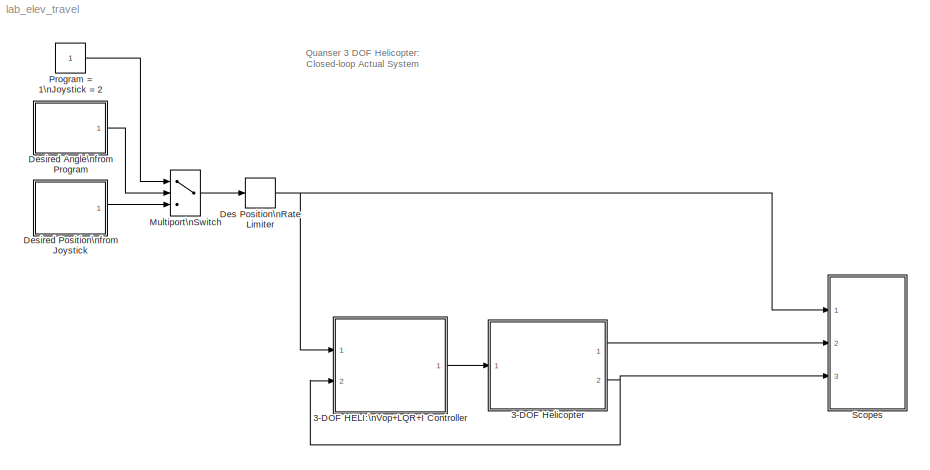
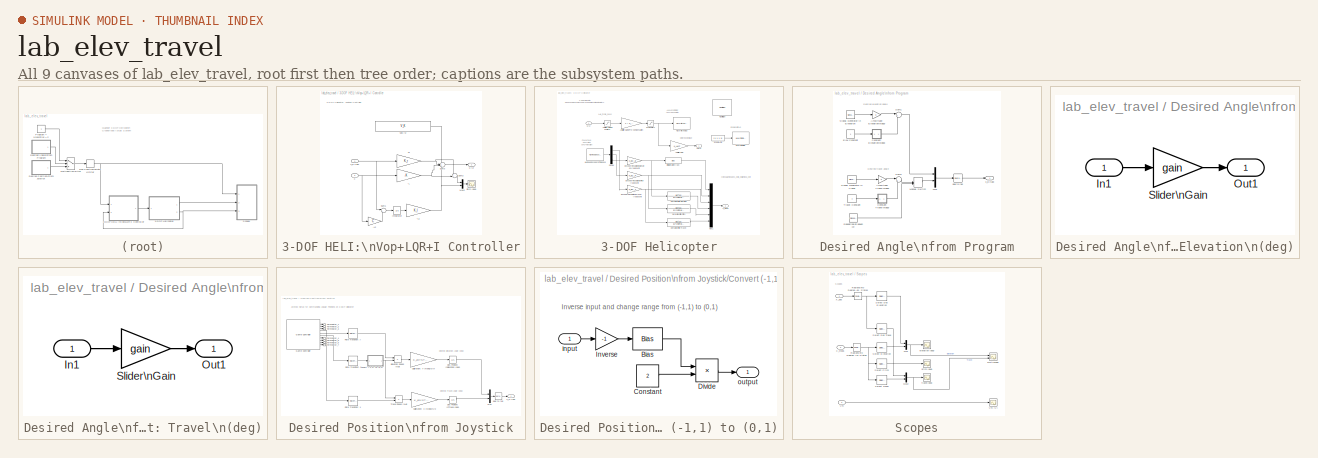
[diagram: thumbnail index - all 9 canvases of the model, root first then tree order]
MODEL lab_elev_travel
KIND model
BLOCK [SubSystem] 3-DOF HELI:\nVop+LQR+I Controller
  Ports = [2, 1]
  RequestExecContextInheritance = off
  SID = 400
  Variant = off
BLOCK [Gain] 3-DOF HELI:\nVop+LQR+I Controller/-L
  Gain = -K
  Multiplication = Matrix(K*u)
  OutDataTypeStr = Inherit: Inherit via internal rule
  ParamDataTypeStr = Inherit: Inherit via internal rule
  SID = 403
  SaturateOnIntegerOverflow = off
BLOCK [Gain] 3-DOF HELI:\nVop+LQR+I Controller/-L1
  Gain = K_I
  Multiplication = Matrix(K*u)
  OutDataTypeStr = Inherit: Inherit via internal rule
  ParamDataTypeStr = Inherit: Inherit via internal rule
  SID = 513
  SaturateOnIntegerOverflow = off
BLOCK [Gain] 3-DOF HELI:\nVop+LQR+I Controller/-L2
  Gain = C
  Multiplication = Matrix(K*u)
  OutDataTypeStr = Inherit: Inherit via internal rule
  ParamDataTypeStr = Inherit: Inherit via internal rule
  SID = 515
  SaturateOnIntegerOverflow = off
BLOCK [Integrator] 3-DOF HELI:\nVop+LQR+I Controller/Integrator
  LimitOutput = on
  LowerSaturationLimit = -SAT_INT_ERR_TRAVEL
  Ports = [1, 1]
  SID = 516
  UpperSaturationLimit = SAT_INT_ERR_TRAVEL
BLOCK [Gain] 3-DOF HELI:\nVop+LQR+I Controller/Kr
  Gain = K_r
  Multiplication = Matrix(K*u)
  OutDataTypeStr = Inherit: Inherit via internal rule
  ParamDataTypeStr = Inherit: Inherit via internal rule
  SID = 406
  SaturateOnIntegerOverflow = off
BLOCK [Mux] 3-DOF HELI:\nVop+LQR+I Controller/Mux2
  DisplayOption = bar
  Inputs = 2
  Ports = [2, 1]
  SID = 520
BLOCK [Sum] 3-DOF HELI:\nVop+LQR+I Controller/Sum1
  IconShape = round
  InputSameDT = off
  Inputs = |+-
  OutDataTypeStr = Inherit: Inherit via internal rule
  Ports = [2, 1]
  SID = 514
  SaturateOnIntegerOverflow = off
BLOCK [Sum] 3-DOF HELI:\nVop+LQR+I Controller/Sum2
  IconShape = round
  InputSameDT = off
  OutDataTypeStr = Inherit: Inherit via internal rule
  Ports = [2, 1]
  SID = 521
  SaturateOnIntegerOverflow = off
BLOCK [Sum] 3-DOF HELI:\nVop+LQR+I Controller/Sum3
  IconShape = round
  InputSameDT = off
  Inputs = ++++
  OutDataTypeStr = Inherit: Inherit via internal rule
  Ports = [4, 1]
  SID = 408
  SaturateOnIntegerOverflow = off
BLOCK [Constant] 3-DOF HELI:\nVop+LQR+I Controller/Vop (V)
  SID = 409
  Value = V_K
BLOCK [Inport] 3-DOF HELI:\nVop+LQR+I Controller/X
  IconDisplay = Port number
  Port = 2
  SID = 402
BLOCK [Inport] 3-DOF HELI:\nVop+LQR+I Controller/X_d (rad)
  IconDisplay = Port number
  SID = 401
BLOCK [Scope] 3-DOF HELI:\nVop+LQR+I Controller/pitch (deg)
  Ports = [1]
  SID = 522
  ScopeSpecificationString = C++SS(StrPVP('Location','[1381, 610, 1858, 1035]'),StrPVP('Open','off'),StrPVP('TickLabels','on'),StrPVP('ZoomMode','xonly'),MxPVP('AxesTitles',24,'struct(''axes1'',''%<SignalLabel>'')'),StrPVP('TimeRange','20'),StrPVP('YMin','-7'),StrPVP('YMax','14'),StrPVP('SaveName','ScopeData3'),StrPVP('DataFormat','Array'),StrPVP('LimitDataPoints','off'),StrPVP('BlockParamSampleTime','0'),StrPVP('Decimation',...<+43ch>
BLOCK [Outport] 3-DOF HELI:\nVop+LQR+I Controller/u (V)
  IconDisplay = Port number
  SID = 410
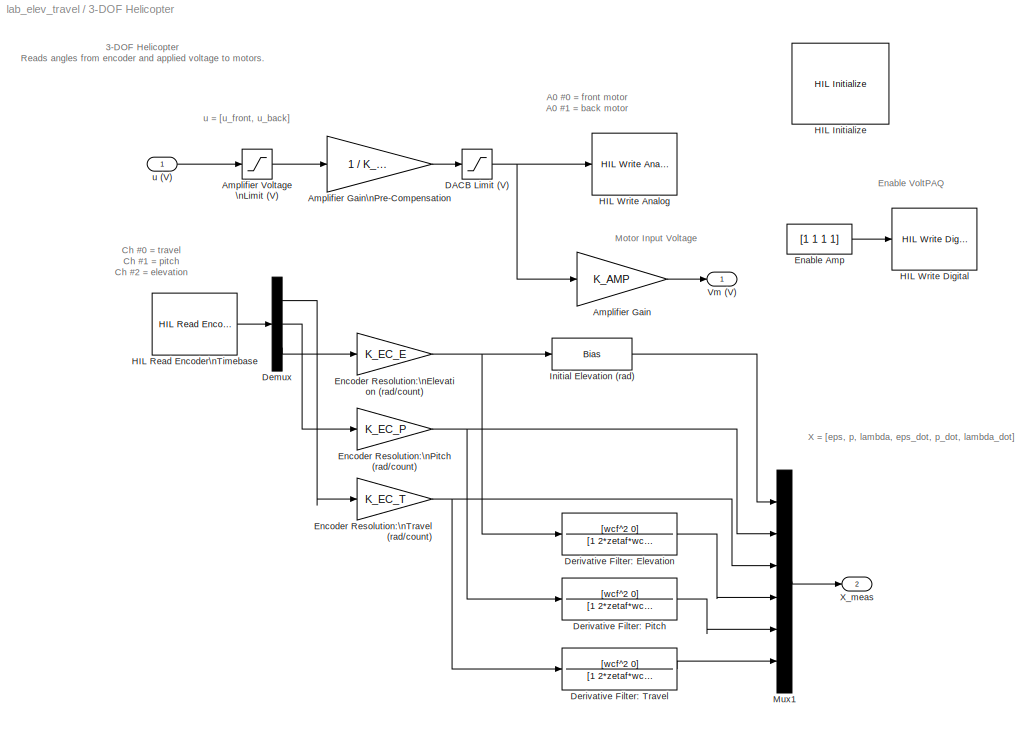
BLOCK [SubSystem] 3-DOF Helicopter
  Ports = [1, 2]
  RequestExecContextInheritance = off
  SID = 37
  Variant = off
BLOCK [Gain] 3-DOF Helicopter/Amplifier Gain
  Gain = K_AMP
  Multiplication = Matrix(K*u)
  SID = 39
BLOCK [Gain] 3-DOF Helicopter/Amplifier Gain\nPre-Compensation
  Gain = 1 / K_AMP
  Multiplication = Matrix(K*u)
  SID = 40
BLOCK [Saturate] 3-DOF Helicopter/Amplifier Voltage \nLimit (V)
  InputPortMap = u0
  LowerLimit = -VMAX_AMP
  Ports = [1, 1]
  SID = 41
  UpperLimit = VMAX_AMP
BLOCK [Saturate] 3-DOF Helicopter/DACB Limit (V)
  InputPortMap = u0
  LowerLimit = -VMAX_DAC
  Ports = [1, 1]
  SID = 42
  UpperLimit = VMAX_DAC
BLOCK [Demux] 3-DOF Helicopter/Demux
  DisplayOption = bar
  Outputs = 3
  Ports = [1, 3]
  SID = 43
BLOCK [TransferFcn] 3-DOF Helicopter/Derivative Filter: Elevation
  Denominator = [1 2*zetaf*wcf wcf^2]
  Numerator = [wcf^2 0]
  SID = 44
BLOCK [TransferFcn] 3-DOF Helicopter/Derivative Filter: Pitch
  Denominator = [1 2*zetaf*wcf wcf^2]
  Numerator = [wcf^2 0]
  SID = 45
BLOCK [TransferFcn] 3-DOF Helicopter/Derivative Filter: Travel
  Denominator = [1 2*zetaf*wcf wcf^2]
  Numerator = [wcf^2 0]
  SID = 46
BLOCK [Constant] 3-DOF Helicopter/Enable Amp
  SID = 47
  Value = [1 1 1 1]
BLOCK [Gain] 3-DOF Helicopter/Encoder Resolution:\nElevation (rad//count)
  Gain = K_EC_E
  OutDataTypeStr = Inherit: Inherit via internal rule
  ParamDataTypeStr = Inherit: Inherit via internal rule
  SID = 48
  SaturateOnIntegerOverflow = off
BLOCK [Gain] 3-DOF Helicopter/Encoder Resolution:\nPitch (rad//count)
  Gain = K_EC_P
  OutDataTypeStr = Inherit: Inherit via internal rule
  ParamDataTypeStr = Inherit: Inherit via internal rule
  SID = 49
  SaturateOnIntegerOverflow = off
BLOCK [Gain] 3-DOF Helicopter/Encoder Resolution:\nTravel (rad//count)
  Gain = K_EC_T
  OutDataTypeStr = Inherit: Inherit via internal rule
  ParamDataTypeStr = Inherit: Inherit via internal rule
  SID = 50
  SaturateOnIntegerOverflow = off
BLOCK [Reference] 3-DOF Helicopter/HIL Initialize  REF=quarc_library/Data Acquisition/Generic/Configuration/HIL Initialize
  AttributesFormatString = %<object_name> (%<board_type>-%<board_number>)
  Ports = []
  SID = 51
  SourceBlock = quarc_library/Data Acquisition/Generic/Configuration/HIL Initialize
  SourceType = HIL Initialize
  UserData = DataTag0
  UserDataPersistent = on
  active = on
  analog_input_channels = [0:7]
  analog_input_maximums = 10
  analog_input_minimums = -10
  analog_output_channels = [0:7]
  analog_output_maximums = 10
  analog_output_minimums = -10
  board_number = 0
  board_options = update_rate=normal
  board_type = q8_usb
  clock_modes = []
  digital_input_channels = [4:7]
  digital_output_channels = [0:3]
  digital_output_configuration = []
  encoder_channels = [0:7]
  encoder_filter_frequency = []
  exclusive = off
  final_analog_outputs = [0]
  final_digital_outputs = [0]
  final_other_outputs = []
  final_pwm_outputs = [0]
  hardware_clocks = [0:2]
  initial_analog_outputs = [0]
  initial_clock_frequencies = []
  initial_digital_outputs = [0]
  initial_encoder_counts = [0]
  initial_other_outputs = []
  initial_pwm_outputs = [0]
  object_name = HIL-1
  other_output_channels = []
  pwm_alignment = [0]
  pwm_channels = [0:7]
  pwm_configuration = [0]
  pwm_frequency = 99.532799999999995e6/4095
  pwm_leading_deadband = [0]
  pwm_modes = 0
  pwm_polarity = [1]
  pwm_trailing_deadband = [0]
  quadrature = [4]
  set_analog_input_params_at_start = on
  set_analog_input_params_at_switch_in = off
  set_analog_output_params_at_start = on
  set_analog_output_params_at_switch_in = off
  set_analog_outputs_at_start = on
  set_analog_outputs_at_switch_in = off
  set_analog_outputs_at_switch_out = off
  set_analog_outputs_at_terminate = on
  set_analog_outputs_on_watchdog = off
  set_clock_frequencies_at_start = off
  set_clock_frequencies_at_switch_in = off
  set_clock_params_at_start = off
  set_clock_params_at_switch_in = off
  set_digital_output_params_at_start = off
  set_digital_output_params_at_switch_in = off
  set_digital_outputs_at_start = on
  set_digital_outputs_at_switch_in = off
  set_digital_outputs_at_switch_out = off
  set_digital_outputs_at_terminate = on
  set_digital_outputs_on_watchdog = off
  set_encoder_counts_at_start = on
  set_encoder_counts_at_switch_in = off
  set_encoder_params_at_start = on
  set_encoder_params_at_switch_in = off
  set_other_outputs_at_start = off
  set_other_outputs_at_switch_in = off
  set_other_outputs_at_switch_out = off
  set_other_outputs_at_terminate = off
  set_other_outputs_on_watchdog = off
  set_pwm_outputs_at_start = on
  set_pwm_outputs_at_switch_in = off
  set_pwm_outputs_at_switch_out = off
  set_pwm_outputs_at_terminate = on
  set_pwm_outputs_on_watchdog = off
  set_pwm_params_at_start = on
  set_pwm_params_at_switch_in = off
  watchdog_analog_outputs = 0
  watchdog_digital_outputs = [0]
  watchdog_other_outputs = []
  watchdog_pwm_outputs = [0]
BLOCK [Reference] 3-DOF Helicopter/HIL Read Encoder\nTimebase  REF=quarc_library/Data Acquisition/Generic/Timebases/HIL Read Encoder\nTimebase
  AttributesFormatString = (%<object_name>)
  Ports = [0, 1]
  SID = 52
  SourceBlock = quarc_library/Data Acquisition/Generic/Timebases/HIL Read Encoder\nTimebase
  SourceType = HIL Read Encoder Timebase
  UserData = DataTag1
  UserDataPersistent = on
  active = on
  channels = [0:2]
  clock = 0
  data_type = double
  data_type_mode = Inherit via back propagation
  object_name = HIL-1
  samples_in_buffer = max(ceil(1/qc_get_step_size), 1)
  vector_output = on
BLOCK [Reference] 3-DOF Helicopter/HIL Write Analog  REF=quarc_library/Data Acquisition/Generic/Immediate I//O/HIL Write Analog
  AttributesFormatString = (%<object_name>)
  Ports = [1]
  SID = 53
  SourceBlock = quarc_library/Data Acquisition/Generic/Immediate I//O/HIL Write Analog
  SourceType = HIL Write Analog
  UserData = DataTag2
  UserDataPersistent = on
  active = off
  channels = [0,1]
  object_name = HIL-1
  sample_time = -1
  vector_input = on
BLOCK [Reference] 3-DOF Helicopter/HIL Write Digital  REF=quarc_library/Data Acquisition/Generic/Immediate I//O/HIL Write Digital
  AttributesFormatString = (%<object_name>)
  Ports = [1]
  SID = 54
  SourceBlock = quarc_library/Data Acquisition/Generic/Immediate I//O/HIL Write Digital
  SourceType = HIL Write Digital
  UserData = DataTag3
  UserDataPersistent = on
  active = off
  channels = [0:3]
  object_name = HIL-1
  sample_time = -1
  vector_input = on
BLOCK [Bias] 3-DOF Helicopter/Initial Elevation (rad)
  Bias = elev_0
  SID = 55
  SaturateOnIntegerOverflow = off
BLOCK [Mux] 3-DOF Helicopter/Mux1
  DisplayOption = bar
  Inputs = 6
  Ports = [6, 1]
  SID = 56
BLOCK [Outport] 3-DOF Helicopter/Vm (V)
  IconDisplay = Port number
  SID = 57
BLOCK [Outport] 3-DOF Helicopter/X_meas
  IconDisplay = Port number
  Port = 2
  SID = 58
BLOCK [Inport] 3-DOF Helicopter/u (V)
  IconDisplay = Port number
  SID = 38
BLOCK [RateLimiter] Des Position\nRate Limiter
  FallingSlewLimit = -CMD_RATE_LIMIT
  RisingSlewLimit = CMD_RATE_LIMIT
  SID = 59
  SampleTimeMode = inherited
BLOCK [SubSystem] Desired Angle\nfrom Program
  Ports = [0, 1]
  RequestExecContextInheritance = off
  SID = 60
  Variant = off
BLOCK [Gain] Desired Angle\nfrom Program/Amplitude: Elevation\n(deg)
  Gain = 0
  OutDataTypeStr = Inherit: Inherit via internal rule
  ParamDataTypeStr = Inherit: Inherit via internal rule
  SID = 61
  SaturateOnIntegerOverflow = off
BLOCK [Gain] Desired Angle\nfrom Program/Amplitude: Travel\n(deg)
  Gain = 0
  OutDataTypeStr = Inherit: Inherit via internal rule
  ParamDataTypeStr = Inherit: Inherit via internal rule
  SID = 62
  SaturateOnIntegerOverflow = off
BLOCK [SubSystem] Desired Angle\nfrom Program/Constant: Elevation\n(deg)
  CloseFcn = slideg Close
  CopyFcn = slideg Copy
  DeleteFcn = slideg DeleteBlock
  LoadFcn = slideg Load
  NameChangeFcn = slideg NameChange
  OpenFcn = slideg Open
  ParentCloseFcn = slideg ParentClose
  Ports = [1, 1]
  RequestExecContextInheritance = off
  SID = 63
  StartFcn = slideg StartFcn
  StopFcn = slideg StopFcn
  Variant = off
BLOCK [Inport] Desired Angle\nfrom Program/Constant: Elevation\n(deg)/In1
  IconDisplay = Port number
  SID = 64
BLOCK [Outport] Desired Angle\nfrom Program/Constant: Elevation\n(deg)/Out1
  IconDisplay = Port number
  SID = 66
BLOCK [Gain] Desired Angle\nfrom Program/Constant: Elevation\n(deg)/Slider\nGain
  Gain = gain
  SID = 65
BLOCK [SubSystem] Desired Angle\nfrom Program/Constant: Travel\n(deg)
  CloseFcn = slideg Close
  CopyFcn = slideg Copy
  DeleteFcn = slideg DeleteBlock
  LoadFcn = slideg Load
  NameChangeFcn = slideg NameChange
  OpenFcn = slideg Open
  ParentCloseFcn = slideg ParentClose
  Ports = [1, 1]
  RequestExecContextInheritance = off
  SID = 68
  StartFcn = slideg StartFcn
  StopFcn = slideg StopFcn
  Variant = off
BLOCK [Inport] Desired Angle\nfrom Program/Constant: Travel\n(deg)/In1
  IconDisplay = Port number
  SID = 69
BLOCK [Outport] Desired Angle\nfrom Program/Constant: Travel\n(deg)/Out1
  IconDisplay = Port number
  SID = 71
BLOCK [Gain] Desired Angle\nfrom Program/Constant: Travel\n(deg)/Slider\nGain
  Gain = gain
  SID = 70
BLOCK [Constant] Desired Angle\nfrom Program/Elev Constant
  SID = 72
BLOCK [ManualSwitch] Desired Angle\nfrom Program/Manual Switch
  SID = 73
BLOCK [Mux] Desired Angle\nfrom Program/Mux
  DisplayOption = bar
  Inputs = 2
  Ports = [2, 1]
  SID = 74
BLOCK [Reference] Desired Angle\nfrom Program/Repeating\nSequence  REF=simulink/Sources/Repeating\nSequence
  Ports = [0, 1]
  SID = 75
  SourceBlock = simulink/Sources/Repeating\nSequence
  SourceType = Repeating table
  rep_seq_t = [0  15 16  30  45  46 60 ]
  rep_seq_y = [0 0 30 30  30 0 0 ]
BLOCK [SignalGenerator] Desired Angle\nfrom Program/Signal Generator:\nElevation
  Frequency = 0.04
  Ports = [0, 1]
  SID = 76
  WaveForm = square
BLOCK [SignalGenerator] Desired Angle\nfrom Program/Signal Generator:\nTravel
  Frequency = 0.05
  Ports = [0, 1]
  SID = 77
  WaveForm = square
BLOCK [Sum] Desired Angle\nfrom Program/Sum1
  IconShape = round
  InputSameDT = off
  Inputs = |++
  OutDataTypeStr = Inherit: Inherit via internal rule
  Ports = [2, 1]
  SID = 78
  SaturateOnIntegerOverflow = off
BLOCK [Sum] Desired Angle\nfrom Program/Sum2
  IconShape = round
  InputSameDT = off
  Inputs = |++
  OutDataTypeStr = Inherit: Inherit via internal rule
  Ports = [2, 1]
  SID = 79
  SaturateOnIntegerOverflow = off
BLOCK [Constant] Desired Angle\nfrom Program/Travel Constant
  SID = 80
BLOCK [Reference] Desired Angle\nfrom Program/deg to rad  REF=simulink_extras/Transformations/Degrees to\nRadians
  Ports = [1, 1]
  SID = 81
  SourceBlock = simulink_extras/Transformations/Degrees to\nRadians
  SourceType = DegreesToRadians
BLOCK [Outport] Desired Angle\nfrom Program/x_d (rad)
  IconDisplay = Port number
  SID = 82
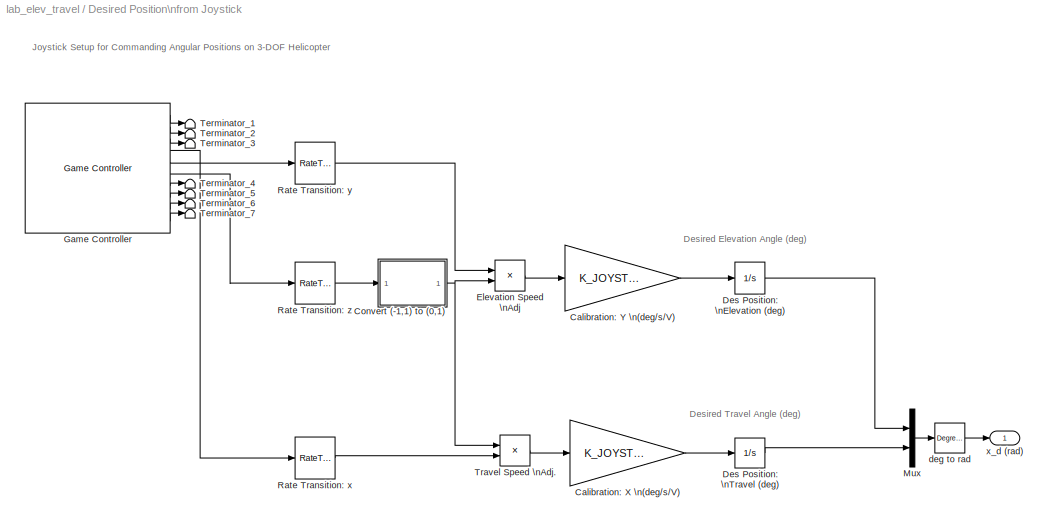
BLOCK [SubSystem] Desired Position\nfrom Joystick
  Ports = [0, 1]
  RequestExecContextInheritance = off
  SID = 83
  Variant = off
BLOCK [Gain] Desired Position\nfrom Joystick/Calibration: X \n(deg//s//V)
  Gain = K_JOYSTICK_X
  OutDataTypeStr = Inherit: Inherit via internal rule
  ParamDataTypeStr = Inherit: Inherit via internal rule
  SID = 84
  SaturateOnIntegerOverflow = off
BLOCK [Gain] Desired Position\nfrom Joystick/Calibration: Y \n(deg//s//V)
  Gain = K_JOYSTICK_Y
  OutDataTypeStr = Inherit: Inherit via internal rule
  ParamDataTypeStr = Inherit: Inherit via internal rule
  SID = 85
  SaturateOnIntegerOverflow = off
BLOCK [SubSystem] Desired Position\nfrom Joystick/Convert (-1,1) to (0,1)
  Ports = [1, 1]
  RequestExecContextInheritance = off
  SID = 87
  Variant = off
BLOCK [Bias] Desired Position\nfrom Joystick/Convert (-1,1) to (0,1)/Bias
  Bias = 1
  SID = 89
  SaturateOnIntegerOverflow = off
BLOCK [Constant] Desired Position\nfrom Joystick/Convert (-1,1) to (0,1)/Constant
  SID = 90
  Value = 2
BLOCK [Product] Desired Position\nfrom Joystick/Convert (-1,1) to (0,1)/Divide
  InputSameDT = off
  Inputs = */
  OutDataTypeStr = Inherit: Inherit via internal rule
  Ports = [2, 1]
  RndMeth = Floor
  SID = 91
  SaturateOnIntegerOverflow = off
BLOCK [Gain] Desired Position\nfrom Joystick/Convert (-1,1) to (0,1)/Inverse
  Gain = -1
  OutDataTypeStr = Inherit: Inherit via internal rule
  ParamDataTypeStr = Inherit: Inherit via internal rule
  SID = 92
  SaturateOnIntegerOverflow = off
BLOCK [Inport] Desired Position\nfrom Joystick/Convert (-1,1) to (0,1)/input
  IconDisplay = Port number
  SID = 88
BLOCK [Outport] Desired Position\nfrom Joystick/Convert (-1,1) to (0,1)/output
  IconDisplay = Port number
  SID = 93
BLOCK [Integrator] Desired Position\nfrom Joystick/Des Position: \nElevation (deg)
  InitialCondition = elev_0*180/pi
  LimitOutput = on
  LowerSaturationLimit = CMD_ELEV_POS_LIMIT_LOWER
  Ports = [1, 1]
  SID = 94
  UpperSaturationLimit = CMD_ELEV_POS_LIMIT_UPPER
BLOCK [Integrator] Desired Position\nfrom Joystick/Des Position: \nTravel (deg)
  LowerSaturationLimit = CMD_TRAVEL_POS_LIMIT_LOWER
  Ports = [1, 1]
  SID = 95
  UpperSaturationLimit = CMD_TRAVEL_POS_LIMIT_UPPER
BLOCK [Product] Desired Position\nfrom Joystick/Elevation Speed \nAdj
  InputSameDT = off
  OutDataTypeStr = Inherit: Inherit via internal rule
  Ports = [2, 1]
  SID = 96
  SaturateOnIntegerOverflow = off
BLOCK [Reference] Desired Position\nfrom Joystick/Game Controller  REF=quarc_library/Devices/Peripherals/Target/Game Controller
  Ports = [0, 10]
  SID = 97
  SourceBlock = quarc_library/Devices/Peripherals/Target/Game Controller
  SourceType = Game Controller
  auto_center = off
  buffer_size = 12
  controller = 1
  deadzone = []
  enabled = on
  sample_time = max(qc_get_step_size, 0.01)
  saturation = []
BLOCK [Mux] Desired Position\nfrom Joystick/Mux
  DisplayOption = bar
  Inputs = 2
  Ports = [2, 1]
  SID = 98
BLOCK [RateTransition] Desired Position\nfrom Joystick/Rate Transition: x
  SID = 99
BLOCK [RateTransition] Desired Position\nfrom Joystick/Rate Transition: y
  SID = 100
BLOCK [RateTransition] Desired Position\nfrom Joystick/Rate Transition: z
  SID = 101
BLOCK [Terminator] Desired Position\nfrom Joystick/Terminator_1
  SID = 132
BLOCK [Terminator] Desired Position\nfrom Joystick/Terminator_2
  SID = 133
BLOCK [Terminator] Desired Position\nfrom Joystick/Terminator_3
  SID = 134
BLOCK [Terminator] Desired Position\nfrom Joystick/Terminator_4
  SID = 135
BLOCK [Terminator] Desired Position\nfrom Joystick/Terminator_5
  SID = 136
BLOCK [Terminator] Desired Position\nfrom Joystick/Terminator_6
  SID = 137
BLOCK [Terminator] Desired Position\nfrom Joystick/Terminator_7
  SID = 138
BLOCK [Product] Desired Position\nfrom Joystick/Travel Speed \nAdj.
  InputSameDT = off
  OutDataTypeStr = Inherit: Inherit via internal rule
  Ports = [2, 1]
  SID = 108
  SaturateOnIntegerOverflow = off
BLOCK [Reference] Desired Position\nfrom Joystick/deg to rad  REF=simulink_extras/Transformations/Degrees to\nRadians
  Ports = [1, 1]
  SID = 109
  SourceBlock = simulink_extras/Transformations/Degrees to\nRadians
  SourceType = DegreesToRadians
BLOCK [Outport] Desired Position\nfrom Joystick/x_d (rad)
  IconDisplay = Port number
  SID = 110
BLOCK [MultiPortSwitch] Multiport\nSwitch
  InputSameDT = off
  Inputs = 2
  Ports = [3, 1]
  SID = 111
  SaturateOnIntegerOverflow = off
BLOCK [Constant] Program = 1\nJoystick = 2
  SID = 112
BLOCK [SubSystem] Scopes
  Ports = [3]
  RequestExecContextInheritance = off
  SID = 113
  Variant = off
BLOCK [Mux] Scopes/Mux
  DisplayOption = bar
  Inputs = 2
  Ports = [2, 1]
  SID = 117
BLOCK [Mux] Scopes/Mux2
  DisplayOption = bar
  Inputs = 2
  Ports = [2, 1]
  SID = 119
BLOCK [Reference] Scopes/Radians\nto Degrees -\nDes. States  REF=simulink_extras/Transformations/Radians\nto Degrees
  Ports = [1, 1]
  SID = 120
  SourceBlock = simulink_extras/Transformations/Radians\nto Degrees
  SourceType = RadiansToDegrees
BLOCK [Reference] Scopes/Radians\nto Degrees -\nSim States  REF=simulink_extras/Transformations/Radians\nto Degrees
  Ports = [1, 1]
  SID = 121
  SourceBlock = simulink_extras/Transformations/Radians\nto Degrees
  SourceType = RadiansToDegrees
BLOCK [Selector] Scopes/Select Des Elevation
  IndexOptions = Index vector (dialog)
  Indices = 1
  InputPortWidth = 2
  OutputSizes = 1
  Ports = [1, 1]
  SID = 122
BLOCK [Selector] Scopes/Select Des Travel
  IndexOptions = Index vector (dialog)
  Indices = 2
  InputPortWidth = 2
  OutputSizes = 1
  Ports = [1, 1]
  SID = 124
BLOCK [Selector] Scopes/Select Elevation
  IndexOptions = Index vector (dialog)
  Indices = 1
  InputPortWidth = 6
  OutputSizes = 1
  Ports = [1, 1]
  SID = 125
BLOCK [Selector] Scopes/Select Pitch
  IndexOptions = Index vector (dialog)
  Indices = 2
  InputPortWidth = 6
  OutputSizes = 1
  Ports = [1, 1]
  SID = 126
BLOCK [Selector] Scopes/Select Travel
  IndexOptions = Index vector (dialog)
  Indices = 3
  InputPortWidth = 6
  OutputSizes = 1
  Ports = [1, 1]
  SID = 127
BLOCK [Inport] Scopes/Vm
  IconDisplay = Port number
  Port = 2
  SID = 115
BLOCK [Scope] Scopes/Vm (V)
  Ports = [1]
  SID = 128
  ScopeSpecificationString = Simulink.scopes.TimeScopeBlockCfg('CurrentConfiguration', extmgr.ConfigurationSet(extmgr.Configuration('Core','General UI',true),extmgr.Configuration('Core','Source UI',true),extmgr.Configuration('Sources','WiredSimulink',true,'DataLoggingVariableName','ScopeData4','DataLoggingSaveFormat','Array','DataLoggingDecimation','1','DataLoggingDecimateData',true),extmgr.Configuration('Visuals','Time Domai...<+1686ch>
BLOCK [Inport] Scopes/X_des
  IconDisplay = Port number
  SID = 114
BLOCK [Inport] Scopes/X_meas
  IconDisplay = Port number
  Port = 3
  SID = 116
BLOCK [Scope] Scopes/elevation (deg)
  Ports = [1]
  SID = 129
  ScopeSpecificationString = Simulink.scopes.TimeScopeBlockCfg('CurrentConfiguration', extmgr.ConfigurationSet(extmgr.Configuration('Core','General UI',true),extmgr.Configuration('Core','Source UI',true),extmgr.Configuration('Sources','WiredSimulink',true,'DataLoggingSaveFormat','Array','DataLoggingDecimation','1','DataLoggingDecimateData',true),extmgr.Configuration('Visuals','Time Domain',true,'TimeAxisLabels','All','Seriali...<+1704ch>
BLOCK [Scope] Scopes/multiscope
  NumInputPorts = 2
  Ports = [2]
  SID = 524
  ScopeSpecificationString = Simulink.scopes.TimeScopeBlockCfg('CurrentConfiguration', extmgr.ConfigurationSet(extmgr.Configuration('Core','General UI',true),extmgr.Configuration('Core','Source UI',true),extmgr.Configuration('Sources','WiredSimulink',true,'DataLoggingVariableName','ScopeData5','DataLoggingSaveFormat','Array','DataLoggingDecimation','1','DataLoggingDecimateData',true),extmgr.Configuration('Visuals','Time Domai...<+2218ch>
BLOCK [Scope] Scopes/pitch (deg)
  Ports = [1]
  SID = 130
  ScopeSpecificationString = Simulink.scopes.TimeScopeBlockCfg('CurrentConfiguration', extmgr.ConfigurationSet(extmgr.Configuration('Core','General UI',true),extmgr.Configuration('Core','Source UI',true),extmgr.Configuration('Sources','WiredSimulink',true,'DataLoggingVariableName','ScopeData1','DataLoggingSaveFormat','Array','DataLoggingDecimation','1','DataLoggingDecimateData',true),extmgr.Configuration('Visuals','Time Domai...<+1736ch>
BLOCK [Scope] Scopes/travel(deg)
  Ports = [1]
  SID = 131
  ScopeSpecificationString = Simulink.scopes.TimeScopeBlockCfg('CurrentConfiguration', extmgr.ConfigurationSet(extmgr.Configuration('Core','General UI',true),extmgr.Configuration('Core','Source UI',true),extmgr.Configuration('Sources','WiredSimulink',true,'DataLoggingVariableName','ScopeData2','DataLoggingSaveFormat','Array','DataLoggingDecimation','1','DataLoggingDecimateData',true),extmgr.Configuration('Visuals','Time Domai...<+1736ch>
ANNOTATION (root): Quanser 3 DOF Helicopter:\nClosed-loop Actual System
ANNOTATION 3-DOF HELI:\nVop+LQR+I Controller: 3-DOF Helicopter: Position Controller
ANNOTATION 3-DOF Helicopter: 3-DOF Helicopter\nReads angles from encoder and applied voltage to motors.
ANNOTATION 3-DOF Helicopter: A0 #0 = front motor\nA0 #1 = back motor
ANNOTATION 3-DOF Helicopter: Ch #0 = travel\nCh #1 = pitch\nCh #2 = elevation
ANNOTATION 3-DOF Helicopter: Enable VoltPAQ
ANNOTATION 3-DOF Helicopter: Motor Input Voltage
ANNOTATION 3-DOF Helicopter: X = [eps, p, lambda, eps_dot, p_dot, lambda_dot]
ANNOTATION 3-DOF Helicopter: u = [u_front, u_back]
ANNOTATION Desired Angle\nfrom Program: Desired elevation angle
ANNOTATION Desired Angle\nfrom Program: Desired travel angle
ANNOTATION Desired Position\nfrom Joystick: Desired Elevation Angle (deg)
ANNOTATION Desired Position\nfrom Joystick: Desired Travel Angle (deg)
ANNOTATION Desired Position\nfrom Joystick: Joystick Setup for Commanding Angular Positions on 3-DOF Helicopter
ANNOTATION Desired Position\nfrom Joystick/Convert (-1,1) to (0,1): Inverse input and change range from (-1,1) to (0,1)
ANNOTATION Scopes: Scopes
NET 3-DOF HELI:\nVop+LQR+I Controller/-L1:1 -> 3-DOF HELI:\nVop+LQR+I Controller/Mux2:2, 3-DOF HELI:\nVop+LQR+I Controller/Sum3:4
LINE 3-DOF HELI:\nVop+LQR+I Controller/-L2:1 -> 3-DOF HELI:\nVop+LQR+I Controller/Sum1:2
NET 3-DOF HELI:\nVop+LQR+I Controller/-L:1 -> 3-DOF HELI:\nVop+LQR+I Controller/Sum2:2, 3-DOF HELI:\nVop+LQR+I Controller/Sum3:3
LINE 3-DOF HELI:\nVop+LQR+I Controller/Integrator:1 -> 3-DOF HELI:\nVop+LQR+I Controller/-L1:1
NET 3-DOF HELI:\nVop+LQR+I Controller/Kr:1 -> 3-DOF HELI:\nVop+LQR+I Controller/Sum2:1, 3-DOF HELI:\nVop+LQR+I Controller/Sum3:2
LINE 3-DOF HELI:\nVop+LQR+I Controller/Mux2:1 -> 3-DOF HELI:\nVop+LQR+I Controller/pitch (deg):1
LINE 3-DOF HELI:\nVop+LQR+I Controller/Sum1:1 -> 3-DOF HELI:\nVop+LQR+I Controller/Integrator:1
LINE 3-DOF HELI:\nVop+LQR+I Controller/Sum2:1 -> 3-DOF HELI:\nVop+LQR+I Controller/Mux2:1
LINE 3-DOF HELI:\nVop+LQR+I Controller/Sum3:1 -> 3-DOF HELI:\nVop+LQR+I Controller/u (V):1
LINE 3-DOF HELI:\nVop+LQR+I Controller/Vop (V):1 -> 3-DOF HELI:\nVop+LQR+I Controller/Sum3:1
NET 3-DOF HELI:\nVop+LQR+I Controller/X:1 -> 3-DOF HELI:\nVop+LQR+I Controller/-L2:1, 3-DOF HELI:\nVop+LQR+I Controller/-L:1
NET 3-DOF HELI:\nVop+LQR+I Controller/X_d (rad):1 -> 3-DOF HELI:\nVop+LQR+I Controller/Kr:1, 3-DOF HELI:\nVop+LQR+I Controller/Sum1:1
LINE 3-DOF HELI:\nVop+LQR+I Controller:1 -> 3-DOF Helicopter:1
LINE 3-DOF Helicopter/Amplifier Gain:1 -> 3-DOF Helicopter/Vm (V):1
LINE 3-DOF Helicopter/Amplifier Gain\nPre-Compensation:1 -> 3-DOF Helicopter/DACB Limit (V):1
LINE 3-DOF Helicopter/Amplifier Voltage \nLimit (V):1 -> 3-DOF Helicopter/Amplifier Gain\nPre-Compensation:1
NET 3-DOF Helicopter/DACB Limit (V):1 -> 3-DOF Helicopter/Amplifier Gain:1, 3-DOF Helicopter/HIL Write Analog:1
LINE 3-DOF Helicopter/Demux:1 -> 3-DOF Helicopter/Encoder Resolution:\nTravel (rad//count):1
LINE 3-DOF Helicopter/Demux:2 -> 3-DOF Helicopter/Encoder Resolution:\nPitch (rad//count):1
LINE 3-DOF Helicopter/Demux:3 -> 3-DOF Helicopter/Encoder Resolution:\nElevation (rad//count):1
LINE 3-DOF Helicopter/Derivative Filter: Elevation:1 -> 3-DOF Helicopter/Mux1:4
LINE 3-DOF Helicopter/Derivative Filter: Pitch:1 -> 3-DOF Helicopter/Mux1:5
LINE 3-DOF Helicopter/Derivative Filter: Travel:1 -> 3-DOF Helicopter/Mux1:6
LINE 3-DOF Helicopter/Enable Amp:1 -> 3-DOF Helicopter/HIL Write Digital:1
NET 3-DOF Helicopter/Encoder Resolution:\nElevation (rad//count):1 -> 3-DOF Helicopter/Derivative Filter: Elevation:1, 3-DOF Helicopter/Initial Elevation (rad):1
NET 3-DOF Helicopter/Encoder Resolution:\nPitch (rad//count):1 -> 3-DOF Helicopter/Derivative Filter: Pitch:1, 3-DOF Helicopter/Mux1:2
NET 3-DOF Helicopter/Encoder Resolution:\nTravel (rad//count):1 -> 3-DOF Helicopter/Derivative Filter: Travel:1, 3-DOF Helicopter/Mux1:3
LINE 3-DOF Helicopter/HIL Read Encoder\nTimebase:1 -> 3-DOF Helicopter/Demux:1
LINE 3-DOF Helicopter/Initial Elevation (rad):1 -> 3-DOF Helicopter/Mux1:1
LINE 3-DOF Helicopter/Mux1:1 -> 3-DOF Helicopter/X_meas:1
LINE 3-DOF Helicopter/u (V):1 -> 3-DOF Helicopter/Amplifier Voltage \nLimit (V):1
LINE 3-DOF Helicopter:1 -> Scopes:2
NET 3-DOF Helicopter:2 -> 3-DOF HELI:\nVop+LQR+I Controller:2, Scopes:3
NET Des Position\nRate Limiter:1 -> 3-DOF HELI:\nVop+LQR+I Controller:1, Scopes:1
LINE Desired Angle\nfrom Program/Amplitude: Elevation\n(deg):1 -> Desired Angle\nfrom Program/Sum1:1
LINE Desired Angle\nfrom Program/Amplitude: Travel\n(deg):1 -> Desired Angle\nfrom Program/Sum2:1
LINE Desired Angle\nfrom Program/Constant: Elevation\n(deg)/In1:1 -> Desired Angle\nfrom Program/Constant: Elevation\n(deg)/Slider\nGain:1
LINE Desired Angle\nfrom Program/Constant: Elevation\n(deg)/Slider\nGain:1 -> Desired Angle\nfrom Program/Constant: Elevation\n(deg)/Out1:1
LINE Desired Angle\nfrom Program/Constant: Elevation\n(deg):1 -> Desired Angle\nfrom Program/Sum1:2
LINE Desired Angle\nfrom Program/Constant: Travel\n(deg)/In1:1 -> Desired Angle\nfrom Program/Constant: Travel\n(deg)/Slider\nGain:1
LINE Desired Angle\nfrom Program/Constant: Travel\n(deg)/Slider\nGain:1 -> Desired Angle\nfrom Program/Constant: Travel\n(deg)/Out1:1
LINE Desired Angle\nfrom Program/Constant: Travel\n(deg):1 -> Desired Angle\nfrom Program/Sum2:2
LINE Desired Angle\nfrom Program/Elev Constant:1 -> Desired Angle\nfrom Program/Constant: Elevation\n(deg):1
LINE Desired Angle\nfrom Program/Manual Switch:1 -> Desired Angle\nfrom Program/Mux:2
LINE Desired Angle\nfrom Program/Mux:1 -> Desired Angle\nfrom Program/deg to rad:1
LINE Desired Angle\nfrom Program/Repeating\nSequence:1 -> Desired Angle\nfrom Program/Manual Switch:2
LINE Desired Angle\nfrom Program/Signal Generator:\nElevation:1 -> Desired Angle\nfrom Program/Amplitude: Elevation\n(deg):1
LINE Desired Angle\nfrom Program/Signal Generator:\nTravel:1 -> Desired Angle\nfrom Program/Amplitude: Travel\n(deg):1
LINE Desired Angle\nfrom Program/Sum1:1 -> Desired Angle\nfrom Program/Mux:1
LINE Desired Angle\nfrom Program/Sum2:1 -> Desired Angle\nfrom Program/Manual Switch:1
LINE Desired Angle\nfrom Program/Travel Constant:1 -> Desired Angle\nfrom Program/Constant: Travel\n(deg):1
LINE Desired Angle\nfrom Program/deg to rad:1 -> Desired Angle\nfrom Program/x_d (rad):1
LINE Desired Angle\nfrom Program:1 -> Multiport\nSwitch:2
LINE Desired Position\nfrom Joystick/Calibration: X \n(deg//s//V):1 -> Desired Position\nfrom Joystick/Des Position: \nTravel (deg):1
LINE Desired Position\nfrom Joystick/Calibration: Y \n(deg//s//V):1 -> Desired Position\nfrom Joystick/Des Position: \nElevation (deg):1
LINE Desired Position\nfrom Joystick/Convert (-1,1) to (0,1)/Bias:1 -> Desired Position\nfrom Joystick/Convert (-1,1) to (0,1)/Divide:1
LINE Desired Position\nfrom Joystick/Convert (-1,1) to (0,1)/Constant:1 -> Desired Position\nfrom Joystick/Convert (-1,1) to (0,1)/Divide:2
LINE Desired Position\nfrom Joystick/Convert (-1,1) to (0,1)/Divide:1 -> Desired Position\nfrom Joystick/Convert (-1,1) to (0,1)/output:1
LINE Desired Position\nfrom Joystick/Convert (-1,1) to (0,1)/Inverse:1 -> Desired Position\nfrom Joystick/Convert (-1,1) to (0,1)/Bias:1
LINE Desired Position\nfrom Joystick/Convert (-1,1) to (0,1)/input:1 -> Desired Position\nfrom Joystick/Convert (-1,1) to (0,1)/Inverse:1
NET Desired Position\nfrom Joystick/Convert (-1,1) to (0,1):1 -> Desired Position\nfrom Joystick/Elevation Speed \nAdj:2, Desired Position\nfrom Joystick/Travel Speed \nAdj.:1
LINE Desired Position\nfrom Joystick/Des Position: \nElevation (deg):1 -> Desired Position\nfrom Joystick/Mux:1
LINE Desired Position\nfrom Joystick/Des Position: \nTravel (deg):1 -> Desired Position\nfrom Joystick/Mux:2
LINE Desired Position\nfrom Joystick/Elevation Speed \nAdj:1 -> Desired Position\nfrom Joystick/Calibration: Y \n(deg//s//V):1
LINE Desired Position\nfrom Joystick/Game Controller:1 -> Desired Position\nfrom Joystick/Terminator_1:1
LINE Desired Position\nfrom Joystick/Game Controller:10 -> Desired Position\nfrom Joystick/Terminator_7:1
LINE Desired Position\nfrom Joystick/Game Controller:2 -> Desired Position\nfrom Joystick/Terminator_2:1
LINE Desired Position\nfrom Joystick/Game Controller:3 -> Desired Position\nfrom Joystick/Terminator_3:1
LINE Desired Position\nfrom Joystick/Game Controller:4 -> Desired Position\nfrom Joystick/Rate Transition: x:1
LINE Desired Position\nfrom Joystick/Game Controller:5 -> Desired Position\nfrom Joystick/Rate Transition: y:1
LINE Desired Position\nfrom Joystick/Game Controller:6 -> Desired Position\nfrom Joystick/Rate Transition: z:1
LINE Desired Position\nfrom Joystick/Game Controller:7 -> Desired Position\nfrom Joystick/Terminator_4:1
LINE Desired Position\nfrom Joystick/Game Controller:8 -> Desired Position\nfrom Joystick/Terminator_5:1
LINE Desired Position\nfrom Joystick/Game Controller:9 -> Desired Position\nfrom Joystick/Terminator_6:1
LINE Desired Position\nfrom Joystick/Mux:1 -> Desired Position\nfrom Joystick/deg to rad:1
LINE Desired Position\nfrom Joystick/Rate Transition: x:1 -> Desired Position\nfrom Joystick/Travel Speed \nAdj.:2
LINE Desired Position\nfrom Joystick/Rate Transition: y:1 -> Desired Position\nfrom Joystick/Elevation Speed \nAdj:1
LINE Desired Position\nfrom Joystick/Rate Transition: z:1 -> Desired Position\nfrom Joystick/Convert (-1,1) to (0,1):1
LINE Desired Position\nfrom Joystick/Travel Speed \nAdj.:1 -> Desired Position\nfrom Joystick/Calibration: X \n(deg//s//V):1
LINE Desired Position\nfrom Joystick/deg to rad:1 -> Desired Position\nfrom Joystick/x_d (rad):1
LINE Desired Position\nfrom Joystick:1 -> Multiport\nSwitch:3
LINE Multiport\nSwitch:1 -> Des Position\nRate Limiter:1
LINE Program = 1\nJoystick = 2:1 -> Multiport\nSwitch:1
NET Scopes/Mux2:1 -> Scopes/multiscope:2, Scopes/travel(deg):1
NET Scopes/Mux:1 -> Scopes/elevation (deg):1, Scopes/multiscope:1
NET Scopes/Radians\nto Degrees -\nDes. States:1 -> Scopes/Select Des Elevation:1, Scopes/Select Des Travel:1
NET Scopes/Radians\nto Degrees -\nSim States:1 -> Scopes/Select Elevation:1, Scopes/Select Pitch:1, Scopes/Select Travel:1
LINE Scopes/Select Des Elevation:1 -> Scopes/Mux:1
LINE Scopes/Select Des Travel:1 -> Scopes/Mux2:1
LINE Scopes/Select Elevation:1 -> Scopes/Mux:2
LINE Scopes/Select Pitch:1 -> Scopes/pitch (deg):1
LINE Scopes/Select Travel:1 -> Scopes/Mux2:2
LINE Scopes/Vm:1 -> Scopes/Vm (V):1
LINE Scopes/X_des:1 -> Scopes/Radians\nto Degrees -\nDes. States:1
LINE Scopes/X_meas:1 -> Scopes/Radians\nto Degrees -\nSim States:1
note: NET lines group one-source signal fan-out (src -> all destinations, sorted); 1:1 wires keep LINE
